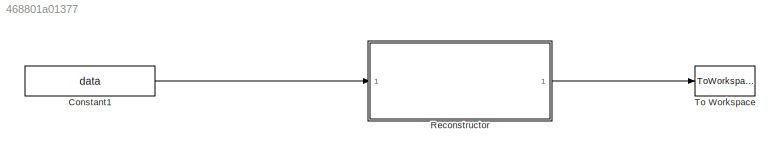
MODEL slx_468801a01377
KIND model
CONFIG AbsTol = auto
CONFIG FixedStep = auto
CONFIG MaxStep = auto
CONFIG MinStep = auto
CONFIG RelTol = 1e-3
CONFIG SampleTimeConstraint = Unconstrained
CONFIG Solver = VariableStepAuto
CONFIG SolverMode = Auto
CONFIG SolverName = VariableStepAuto
CONFIG StartTime = 0.0
CONFIG StopTime = 0
BLOCK [Constant] Constant1
  Value = data
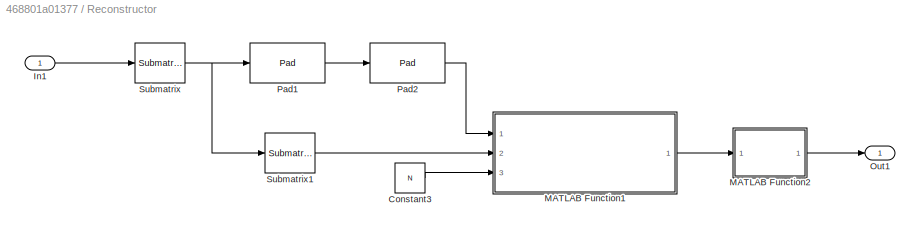
BLOCK [SubSystem] Reconstructor
  Ports = [1, 1]
  RequestExecContextInheritance = off
  Variant = off
BLOCK [Constant] Reconstructor/Constant3
  Value = N
BLOCK [Inport] Reconstructor/In1
  IconDisplay = Port number
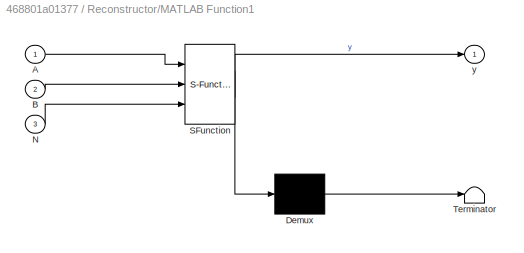
BLOCK [SubSystem] Reconstructor/MATLAB Function1
  ErrorFcn = Stateflow.Translate.translate
  PermitHierarchicalResolution = ExplicitOnly
  Ports = [3, 1]
  RequestExecContextInheritance = off
  SFBlockType = MATLAB Function
  TreatAsAtomicUnit = on
  Variant = off
BLOCK [Demux] Reconstructor/MATLAB Function1/ Demux 
  Outputs = 1
  Ports = [1, 1]
BLOCK [S-Function] Reconstructor/MATLAB Function1/ SFunction 
  EnableBusSupport = on
  FunctionName = sf_sfun
  PortCounts = [3 2]
  Ports = [3, 2]
  SFunctionDeploymentMode = off
  Tag = Stateflow S-Function untitled1 1
BLOCK [Terminator] Reconstructor/MATLAB Function1/ Terminator 
BLOCK [Inport] Reconstructor/MATLAB Function1/A
  IconDisplay = Port number
BLOCK [Inport] Reconstructor/MATLAB Function1/B
  IconDisplay = Port number
  Port = 2
BLOCK [Inport] Reconstructor/MATLAB Function1/N
  IconDisplay = Port number
  Port = 3
BLOCK [Outport] Reconstructor/MATLAB Function1/y
  IconDisplay = Port number
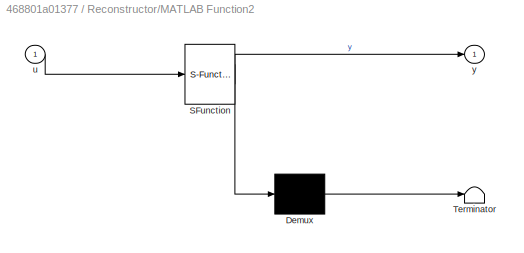
BLOCK [SubSystem] Reconstructor/MATLAB Function2
  ErrorFcn = Stateflow.Translate.translate
  PermitHierarchicalResolution = ExplicitOnly
  Ports = [1, 1]
  RequestExecContextInheritance = off
  SFBlockType = MATLAB Function
  TreatAsAtomicUnit = on
  Variant = off
BLOCK [Demux] Reconstructor/MATLAB Function2/ Demux 
  Outputs = 1
  Ports = [1, 1]
BLOCK [S-Function] Reconstructor/MATLAB Function2/ SFunction 
  EnableBusSupport = on
  FunctionName = sf_sfun
  PortCounts = [1 2]
  Ports = [1, 2]
  SFunctionDeploymentMode = off
  Tag = Stateflow S-Function untitled1 3
BLOCK [Terminator] Reconstructor/MATLAB Function2/ Terminator 
BLOCK [Inport] Reconstructor/MATLAB Function2/u
  IconDisplay = Port number
BLOCK [Outport] Reconstructor/MATLAB Function2/y
  IconDisplay = Port number
BLOCK [Outport] Reconstructor/Out1
  IconDisplay = Port number
BLOCK [Reference] Reconstructor/Pad1  REF=dspsigops/Pad
  Ports = [1, 1]
  SourceBlock = dspsigops/Pad
  SourceType = Pad
BLOCK [Reference] Reconstructor/Pad2  REF=dspsigops/Pad
  Ports = [1, 1]
  SourceBlock = dspsigops/Pad
  SourceType = Pad
BLOCK [Reference] Reconstructor/Submatrix  REF=dspmtrx3/Submatrix
  Ports = [1, 1]
  SourceBlock = dspmtrx3/Submatrix
  SourceType = Submatrix
BLOCK [Reference] Reconstructor/Submatrix1  REF=dspmtrx3/Submatrix
  Ports = [1, 1]
  SourceBlock = dspmtrx3/Submatrix
  SourceType = Submatrix
BLOCK [ToWorkspace] To Workspace
  FixptAsFi = on
  MaxDataPoints = inf
  Ports = [1]
  SampleTime = -1
  SaveFormat = Structure
  VariableName = simout
LINE Constant1:1 -> Reconstructor:1
LINE Reconstructor/Constant3:1 -> Reconstructor/MATLAB Function1:3
LINE Reconstructor/In1:1 -> Reconstructor/Submatrix:1
LINE Reconstructor/MATLAB Function1:1 -> Reconstructor/MATLAB Function2:1
LINE Reconstructor/MATLAB Function2:1 -> Reconstructor/Out1:1
LINE Reconstructor/Pad1:1 -> Reconstructor/Pad2:1
LINE Reconstructor/Pad2:1 -> Reconstructor/MATLAB Function1:1
LINE Reconstructor/Submatrix1:1 -> Reconstructor/MATLAB Function1:2
NET Reconstructor/Submatrix:1 -> Reconstructor/Pad1:1, Reconstructor/Submatrix1:1
LINE Reconstructor:1 -> To Workspace:1
note: NET lines group one-source signal fan-out (src -> all destinations, sorted); 1:1 wires keep LINE
CHART Reconstructor/MATLAB Function1 states=1 transitions=1
  STATE_LABEL 'eML_blk_kernel()'
  STATE_LABEL 'SCRIPT:\nfunction y = assign_peak(A,B,N)\n%#codegen\n[m,n] = size(A);\ny = zeros(m,n);\nloc = B(2);\nval = B(1);\nA(loc) = val;\nA = 2.*A;\nA(1) = 0.5.*A(1);\nA(N/2) = 0.5.*A(N/2);\ny = A;'
CHART Reconstructor/MATLAB Function2 states=1 transitions=1
  STATE_LABEL 'eML_blk_kernel()'
  STATE_LABEL "SCRIPT:\nfunction y = inv_cepstrum(u)\ncoder.extrinsic('icceps')\ny = zeros(length(u),1);\ny = icceps(u,0);"
